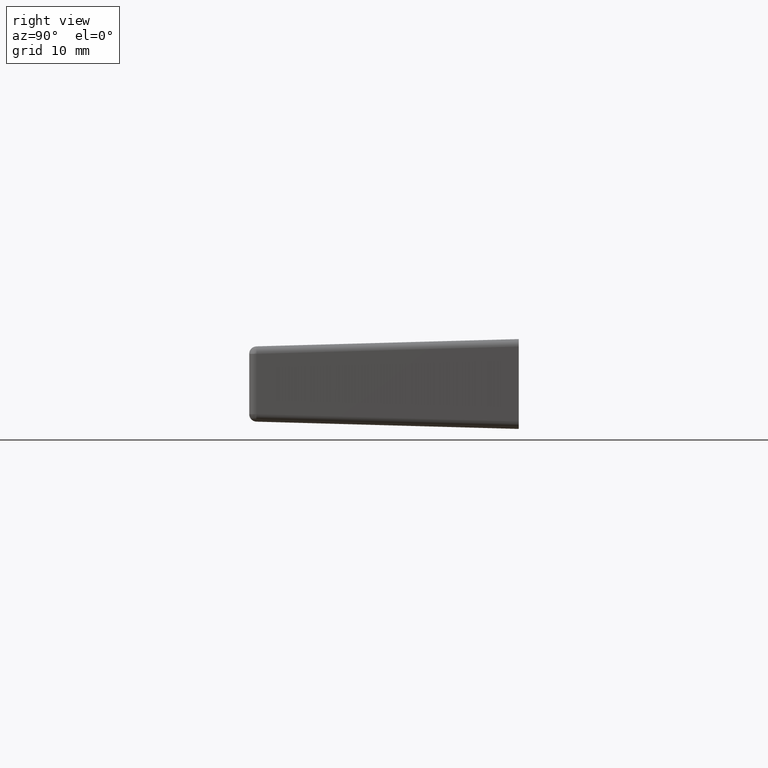
[diagram: clean part render]
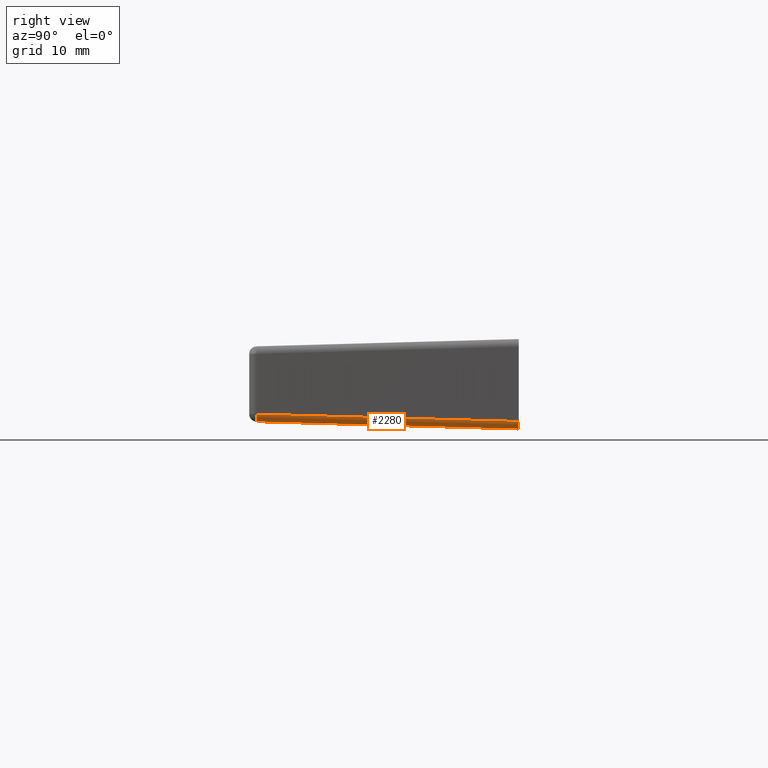
[diagram: same view with one face highlighted and labeled with its STEP entity id]
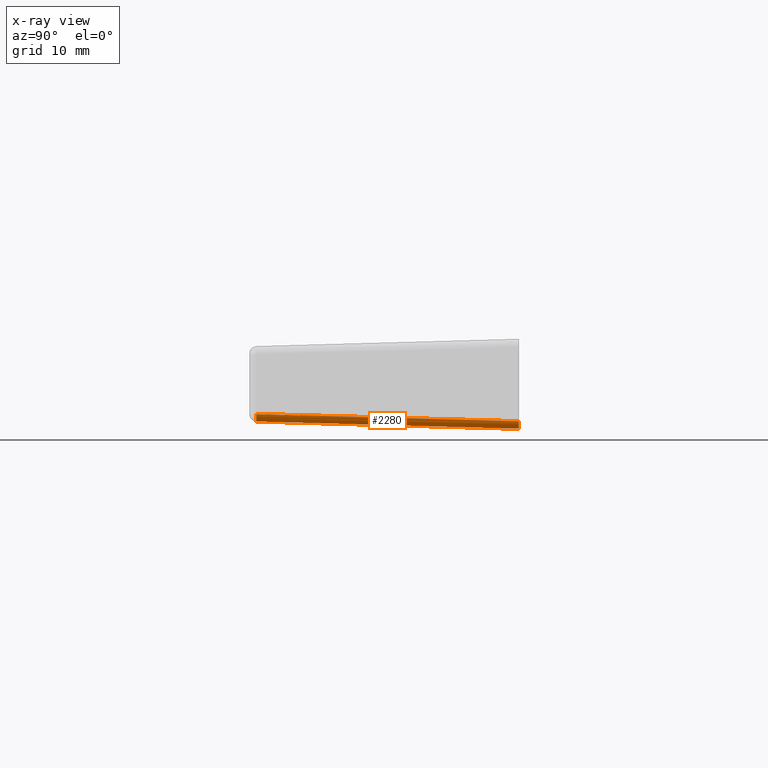
[diagram: x-ray of the same camera — body ghosted, the highlighted face saturated]
A machine part, right view. The second image highlights one B-rep face of the part: STEP entity #2280.
The next image is the same camera in x-ray: the body ghosted, the highlighted face saturated — about 0% of this face is hidden behind the body in this view.
In plain terms, the highlighted face is a freeform B-spline surface patch.
Its self-contained STEP definition (entity closure, byte-faithful):
#780=CARTESIAN_POINT('',(44.999600000000001,7.105427E-015,-5.000385188717150));
#781=VERTEX_POINT('',#780);
#787=CARTESIAN_POINT('',(43.999985579248303,0.0,-6.0));
#788=VERTEX_POINT('',#787);
#789=CARTESIAN_POINT('',(44.999600000000001,7.105427E-015,-5.000385188717150));
#790=CARTESIAN_POINT('',(44.999817145416372,5.317781E-015,-5.147639513034548));
#791=CARTESIAN_POINT('',(44.949991483475088,2.891358E-015,-5.368267844046492));
#792=CARTESIAN_POINT('',(44.794492760748462,6.134608E-016,-5.620415393316019));
#793=CARTESIAN_POINT('',(44.599203369960058,-8.364755E-016,-5.820797523636642));
#794=CARTESIAN_POINT('',(44.327164956199148,-1.232948E-015,-5.966132643998949));
#795=CARTESIAN_POINT('',(44.098119903985072,-4.935494E-016,-6.000040778517140));
#796=CARTESIAN_POINT('',(43.999985579248303,0.0,-6.0));
#797=B_SPLINE_CURVE_WITH_KNOTS('',3,(#789,#790,#791,#792,#793,#794,#795,#796),.UNSPECIFIED.,.F.,.U.,(4,1,1,1,1,4),(0.000000247301259,0.441651087517279,0.662471677864183,0.883262971849896,1.275873055435424,1.570298844597330),.UNSPECIFIED.);
#798=EDGE_CURVE('',#781,#788,#797,.T.);
#914=CARTESIAN_POINT('',(44.027100015134998,-35.027753004556850,-4.027392049701705));
#915=VERTEX_POINT('',#914);
#921=CARTESIAN_POINT('',(44.027100015134998,-35.027753004556850,-4.027392049701705));
#922=CARTESIAN_POINT('',(44.999600000000001,7.105427E-015,-5.000385188717150));
#923=QUASI_UNIFORM_CURVE('',1,(#921,#922),.UNSPECIFIED.,.F.,.U.);
#924=EDGE_CURVE('',#915,#781,#923,.T.);
#2135=CARTESIAN_POINT('',(43.027485203951201,-35.027767067240447,-5.027006470354420));
#2136=VERTEX_POINT('',#2135);
#2240=CARTESIAN_POINT('',(43.027485203951201,-35.027767067240447,-5.027006470354420));
#2241=CARTESIAN_POINT('',(43.125577553194013,-35.030489582360111,-5.026974382780352));
#2242=CARTESIAN_POINT('',(43.313563824794187,-35.034928672007837,-4.998890617905976));
#2243=CARTESIAN_POINT('',(43.546076859330427,-35.038422454525033,-4.892271601444711));
#2244=CARTESIAN_POINT('',(43.740383954458473,-35.039603353956842,-4.740575368934920));
#2245=CARTESIAN_POINT('',(43.874455837981643,-35.038673576998313,-4.573099468214173));
#2246=CARTESIAN_POINT('',(43.993348318929399,-35.035215068343668,-4.329760935449460));
#2247=CARTESIAN_POINT('',(44.027110060149688,-35.031159716143172,-4.150023626881831));
#2248=CARTESIAN_POINT('',(44.027100015134998,-35.027753004556850,-4.027392049701705));
#2249=B_SPLINE_CURVE_WITH_KNOTS('',3,(#2240,#2241,#2242,#2243,#2244,#2245,#2246,#2247,#2248),.UNSPECIFIED.,.F.,.U.,(4,1,1,1,1,1,4),(0.000000246577655,0.294382212027558,0.564259847141247,0.760537047712484,1.030353488014249,1.202082412614178,1.570065066784180),.UNSPECIFIED.);
#2250=EDGE_CURVE('',#2136,#915,#2249,.T.);
#2256=CARTESIAN_POINT('',(42.976227804654243,-35.902990779282732,-5.002331416182575));
#2257=CARTESIAN_POINT('',(43.998295770264157,0.910114424235019,-6.024917671835856));
#2258=CARTESIAN_POINT('',(44.076900958565226,-35.934350168336138,-5.031154135986882));
#2259=CARTESIAN_POINT('',(45.098968924175139,0.878755035181597,-6.053740391640165));
#2260=CARTESIAN_POINT('',(44.000361796263697,-35.901715441415732,-3.932804335863037));
#2261=CARTESIAN_POINT('',(45.022429761873610,0.911389762102009,-4.955390591516314));
#2269=(BOUNDED_SURFACE()B_SPLINE_SURFACE(1,2,((#2256,#2258,#2260),(#2257,#2259,#2261)),.UNSPECIFIED.,.F.,.F.,.U.)B_SPLINE_SURFACE_WITH_KNOTS((2,2),(3,3),(0.0,36.841485044740573),(0.0,0.994493033177126),.UNSPECIFIED.)GEOMETRIC_REPRESENTATION_ITEM()RATIONAL_B_SPLINE_SURFACE(((1.0,0.670952693132344,0.996375894795848),(1.0,0.670952693132344,0.996375894795848)))REPRESENTATION_ITEM('')SURFACE());
#2270=ORIENTED_EDGE('',*,*,#2250,.F.);
#2271=CARTESIAN_POINT('',(43.999985579248303,0.0,-6.0));
#2272=CARTESIAN_POINT('',(43.027485203951201,-35.027767067240447,-5.027006470354420));
#2273=QUASI_UNIFORM_CURVE('',1,(#2271,#2272),.UNSPECIFIED.,.F.,.U.);
#2274=EDGE_CURVE('',#788,#2136,#2273,.T.);
#2275=ORIENTED_EDGE('',*,*,#2274,.F.);
#2276=ORIENTED_EDGE('',*,*,#798,.F.);
#2277=ORIENTED_EDGE('',*,*,#924,.F.);
#2278=EDGE_LOOP('',(#2270,#2275,#2276,#2277));
#2279=FACE_OUTER_BOUND('',#2278,.T.);
#2280=ADVANCED_FACE('',(#2279),#2269,.T.);